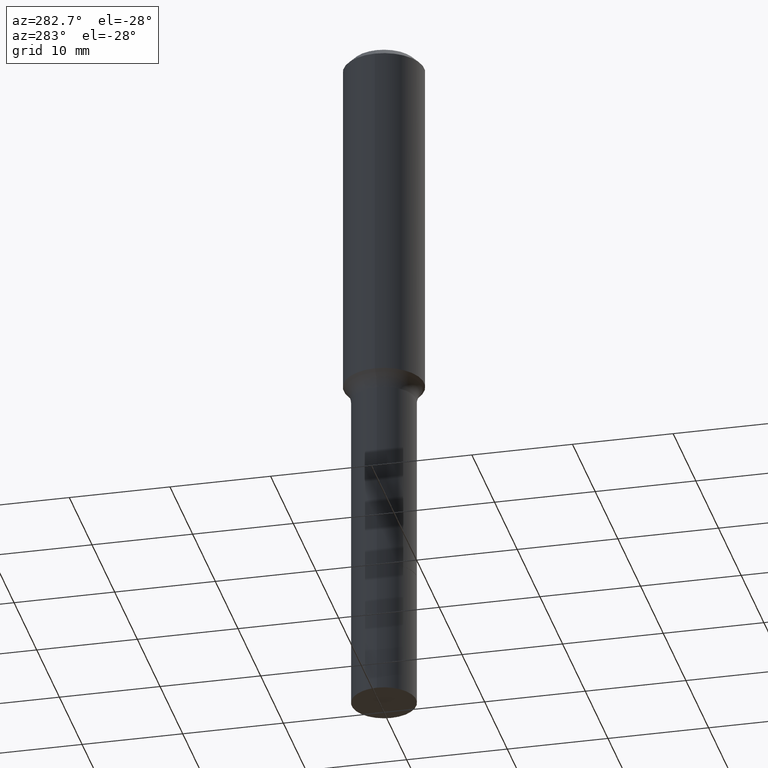
[diagram: clean part render]
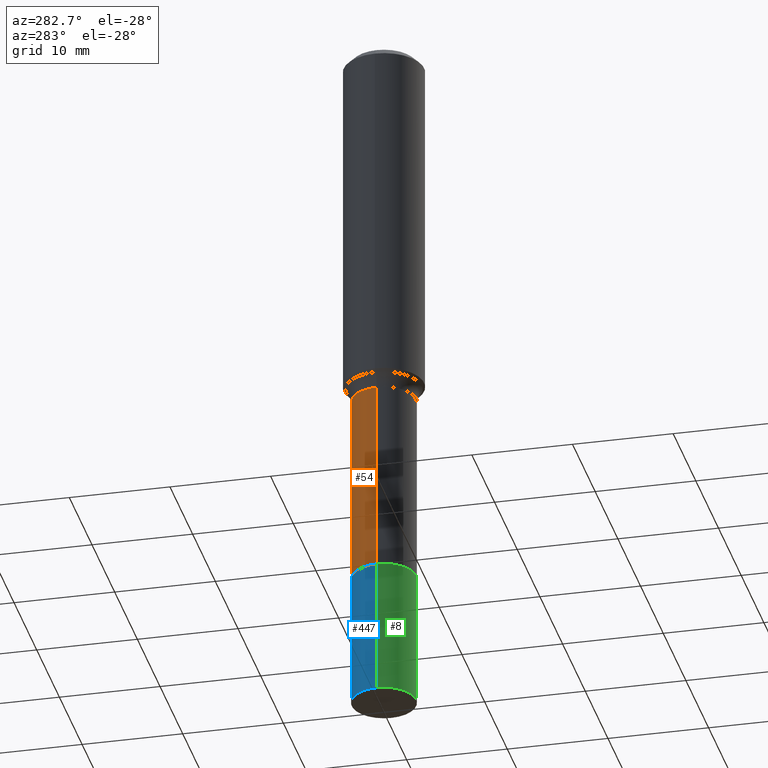
[diagram: same view with three faces highlighted in distinct colors, each labeled with its STEP entity id]
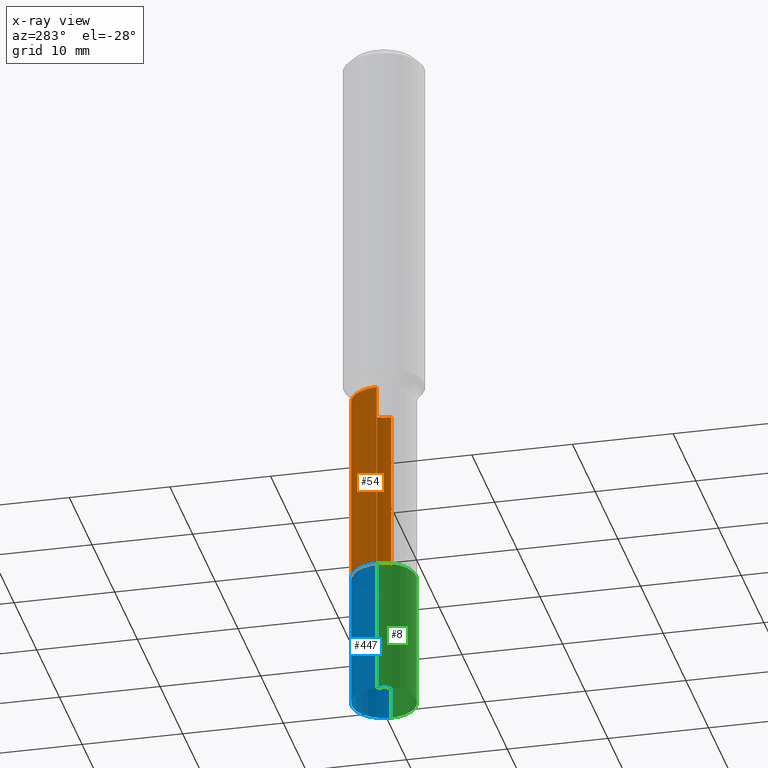
[diagram: x-ray of the same camera — body ghosted, the three highlighted faces saturated]
A machine part, auxiliary view with three faces highlighted in distinct colors.
The next image is the same camera in x-ray (body ghosted, the three faces saturated) — at least one of them is partly hidden behind the body in this view.
Their STEP definitions:

[orange] entity #54 — the highlighted cylindrical surface (edge-blend (fillet) strip) has radius 3.2004 mm, axis along (-0, 0, 1).
#1 = AXIS2_PLACEMENT_3D ( 'NONE', #72, #98, #418 ) ;
#9 = FACE_OUTER_BOUND ( 'NONE', #388, .T. ) ;
#17 = CARTESIAN_POINT ( 'NONE',  ( 0.1259999999999999454, -8.798532973884691559E-16, 6.143982737502876745E-30 ) ) ;
#54 = ADVANCED_FACE ( 'NONE', ( #9 ), #295, .T. ) ;
#61 = CARTESIAN_POINT ( 'NONE',  ( -0.1260000000000000009, -5.524328316606223241E-15, -2.220399999999999707 ) ) ;
#62 = EDGE_CURVE ( 'NONE', #380, #238, #107, .T. ) ;
#72 = CARTESIAN_POINT ( 'NONE',  ( 5.429918937253476724E-29, -7.752485164767320704E-15, -2.220399999999999707 ) ) ;
#97 = CARTESIAN_POINT ( 'NONE',  ( 0.1259999999999998899, -5.966592459949047611E-15, -1.456899999999999862 ) ) ;
#98 = DIRECTION ( 'NONE',  ( -2.445468806185136597E-29, 3.491481338843145583E-15, 1.000000000000000000 ) ) ;
#107 = LINE ( 'NONE', #17, #345 ) ;
#121 = EDGE_CURVE ( 'NONE', #401, #322, #186, .T. ) ;
#141 = CARTESIAN_POINT ( 'NONE',  ( -0.1259999999999999454, 8.952838470577258461E-16, -6.197858213721179206E-30 ) ) ;
#152 = DIRECTION ( 'NONE',  ( -2.445468806185136597E-29, 3.491481338843145583E-15, 1.000000000000000000 ) ) ;
#183 = DIRECTION ( 'NONE',  ( -2.445468806185136877E-29, 3.491481338843145188E-15, 1.000000000000000000 ) ) ;
#186 = LINE ( 'NONE', #141, #208 ) ;
#208 = VECTOR ( 'NONE', #406, 39.37007874015748143 ) ;
#233 = CIRCLE ( 'NONE', #1, 0.1260000000000000009 ) ;
#238 = VERTEX_POINT ( 'NONE', #97 ) ;
#246 = CARTESIAN_POINT ( 'NONE',  ( -0.1259999999999998899, -5.524328316606224029E-15, -1.456899999999999862 ) ) ;
#295 = CYLINDRICAL_SURFACE ( 'NONE', #376, 0.1259999999999999454 ) ;
#297 = CARTESIAN_POINT ( 'NONE',  ( 3.562803503731125923E-29, -5.086739162560578258E-15, -1.456899999999999862 ) ) ;
#322 = VERTEX_POINT ( 'NONE', #246 ) ;
#345 = VECTOR ( 'NONE', #183, 39.37007874015748143 ) ;
#349 = ORIENTED_EDGE ( 'NONE', *, *, #62, .F. ) ;
#352 = ORIENTED_EDGE ( 'NONE', *, *, #121, .T. ) ;
#368 = DIRECTION ( 'NONE',  ( -2.445468806185136597E-29, 3.491481338843145583E-15, 1.000000000000000000 ) ) ;
#376 = AXIS2_PLACEMENT_3D ( 'NONE', #454, #368, #484 ) ;
#380 = VERTEX_POINT ( 'NONE', #449 ) ;
#388 = EDGE_LOOP ( 'NONE', ( #511, #352, #395, #349 ) ) ;
#395 = ORIENTED_EDGE ( 'NONE', *, *, #457, .F. ) ;
#401 = VERTEX_POINT ( 'NONE', #61 ) ;
#403 = AXIS2_PLACEMENT_3D ( 'NONE', #297, #152, #417 ) ;
#406 = DIRECTION ( 'NONE',  ( -2.445468806185136877E-29, 3.491481338843145188E-15, 1.000000000000000000 ) ) ;
#417 = DIRECTION ( 'NONE',  ( 1.000000000000000000, -6.982962677686269077E-15, 0.000000000000000000 ) ) ;
#418 = DIRECTION ( 'NONE',  ( 1.000000000000000000, -6.982962677686262766E-15, 0.000000000000000000 ) ) ;
#449 = CARTESIAN_POINT ( 'NONE',  ( 0.1260000000000000009, -8.632338462155790057E-15, -2.220399999999999707 ) ) ;
#454 = CARTESIAN_POINT ( 'NONE',  ( 0.000000000000000000, 0.000000000000000000, 0.000000000000000000 ) ) ;
#457 = EDGE_CURVE ( 'NONE', #238, #322, #478, .T. ) ;
#478 = CIRCLE ( 'NONE', #403, 0.1259999999999998899 ) ;
#484 = DIRECTION ( 'NONE',  ( 1.000000000000000000, -6.982962677686265922E-15, 4.876176775795935793E-29 ) ) ;
#486 = EDGE_CURVE ( 'NONE', #380, #401, #233, .T. ) ;
#511 = ORIENTED_EDGE ( 'NONE', *, *, #486, .T. ) ;

[blue] entity #447 — the highlighted cylindrical surface (edge-blend (fillet) strip) has radius 3.2004 mm, axis along (-0, 0, 1).
#10 = DIRECTION ( 'NONE',  ( 1.000000000000000000, -6.982962677686261977E-15, 0.000000000000000000 ) ) ;
#13 = DIRECTION ( 'NONE',  ( 1.000000000000000000, -6.982962677686265922E-15, 0.000000000000000000 ) ) ;
#32 = CIRCLE ( 'NONE', #461, 0.1260000000000001674 ) ;
#50 = DIRECTION ( 'NONE',  ( 1.000000000000000000, -6.982962677686262766E-15, 0.000000000000000000 ) ) ;
#58 = DIRECTION ( 'NONE',  ( -2.445468806185136877E-29, 3.491481338843145188E-15, 1.000000000000000000 ) ) ;
#74 = EDGE_LOOP ( 'NONE', ( #275, #391, #470, #144 ) ) ;
#79 = CARTESIAN_POINT ( 'NONE',  ( 0.1260000000000000009, -8.634084202825210772E-15, -2.220899999999999874 ) ) ;
#83 = AXIS2_PLACEMENT_3D ( 'NONE', #444, #359, #50 ) ;
#87 = LINE ( 'NONE', #485, #390 ) ;
#140 = CARTESIAN_POINT ( 'NONE',  ( 6.739467482965618232E-29, -9.622173421717824390E-15, -2.755900000000000016 ) ) ;
#144 = ORIENTED_EDGE ( 'NONE', *, *, #202, .F. ) ;
#160 = FACE_OUTER_BOUND ( 'NONE', #74, .T. ) ;
#163 = CARTESIAN_POINT ( 'NONE',  ( -0.1260000000000000009, -7.792918316519555875E-15, -2.220899999999999874 ) ) ;
#171 = VERTEX_POINT ( 'NONE', #163 ) ;
#176 = EDGE_CURVE ( 'NONE', #361, #171, #464, .T. ) ;
#182 = DIRECTION ( 'NONE',  ( -2.445468806185136597E-29, 3.491481338843145583E-15, 1.000000000000000000 ) ) ;
#202 = EDGE_CURVE ( 'NONE', #277, #515, #87, .T. ) ;
#213 = CARTESIAN_POINT ( 'NONE',  ( -0.1260000000000001674, -7.792918316519555875E-15, -2.755900000000000016 ) ) ;
#218 = EDGE_CURVE ( 'NONE', #515, #171, #304, .T. ) ;
#220 = CYLINDRICAL_SURFACE ( 'NONE', #411, 0.1260000000000000842 ) ;
#243 = VECTOR ( 'NONE', #305, 39.37007874015748143 ) ;
#251 = EDGE_CURVE ( 'NONE', #277, #361, #32, .T. ) ;
#271 = CARTESIAN_POINT ( 'NONE',  ( -0.1260000000000000842, -6.858947058379013600E-15, -2.220899999999999874 ) ) ;
#275 = ORIENTED_EDGE ( 'NONE', *, *, #251, .T. ) ;
#277 = VERTEX_POINT ( 'NONE', #516 ) ;
#304 = CIRCLE ( 'NONE', #83, 0.1260000000000000009 ) ;
#305 = DIRECTION ( 'NONE',  ( -2.445468806185136877E-29, 3.491481338843145188E-15, 1.000000000000000000 ) ) ;
#341 = DIRECTION ( 'NONE',  ( -2.445468806185136597E-29, 3.491481338843145583E-15, 1.000000000000000000 ) ) ;
#359 = DIRECTION ( 'NONE',  ( -2.445468806185136597E-29, 3.491481338843145583E-15, 1.000000000000000000 ) ) ;
#361 = VERTEX_POINT ( 'NONE', #213 ) ;
#369 = CARTESIAN_POINT ( 'NONE',  ( 5.431141671656569525E-29, -7.754230905436741419E-15, -2.220899999999999874 ) ) ;
#390 = VECTOR ( 'NONE', #58, 39.37007874015748143 ) ;
#391 = ORIENTED_EDGE ( 'NONE', *, *, #176, .T. ) ;
#411 = AXIS2_PLACEMENT_3D ( 'NONE', #369, #341, #13 ) ;
#444 = CARTESIAN_POINT ( 'NONE',  ( 5.431141671656569525E-29, -7.754230905436741419E-15, -2.220899999999999874 ) ) ;
#447 = ADVANCED_FACE ( 'NONE', ( #160 ), #220, .T. ) ;
#461 = AXIS2_PLACEMENT_3D ( 'NONE', #140, #182, #10 ) ;
#464 = LINE ( 'NONE', #271, #243 ) ;
#470 = ORIENTED_EDGE ( 'NONE', *, *, #218, .F. ) ;
#485 = CARTESIAN_POINT ( 'NONE',  ( 0.1260000000000000842, -8.634084202825210772E-15, -2.220899999999999874 ) ) ;
#515 = VERTEX_POINT ( 'NONE', #79 ) ;
#516 = CARTESIAN_POINT ( 'NONE',  ( 0.1260000000000001674, -1.050202671910629532E-14, -2.755900000000000016 ) ) ;

[green] entity #8 — the highlighted cylindrical surface (edge-blend (fillet) strip) has radius 3.2004 mm, axis along (-0, 0, 1).
#8 = ADVANCED_FACE ( 'NONE', ( #338 ), #366, .T. ) ;
#18 = DIRECTION ( 'NONE',  ( 1.000000000000000000, -6.982962677686261977E-15, 0.000000000000000000 ) ) ;
#21 = AXIS2_PLACEMENT_3D ( 'NONE', #496, #67, #18 ) ;
#55 = CARTESIAN_POINT ( 'NONE',  ( 5.431141671656569525E-29, -7.754230905436741419E-15, -2.220899999999999874 ) ) ;
#58 = DIRECTION ( 'NONE',  ( -2.445468806185136877E-29, 3.491481338843145188E-15, 1.000000000000000000 ) ) ;
#67 = DIRECTION ( 'NONE',  ( -2.445468806185136597E-29, 3.491481338843145583E-15, 1.000000000000000000 ) ) ;
#79 = CARTESIAN_POINT ( 'NONE',  ( 0.1260000000000000009, -8.634084202825210772E-15, -2.220899999999999874 ) ) ;
#87 = LINE ( 'NONE', #485, #390 ) ;
#92 = DIRECTION ( 'NONE',  ( 1.000000000000000000, -6.982962677686262766E-15, 0.000000000000000000 ) ) ;
#96 = DIRECTION ( 'NONE',  ( 1.000000000000000000, -6.982962677686265922E-15, 0.000000000000000000 ) ) ;
#145 = AXIS2_PLACEMENT_3D ( 'NONE', #55, #222, #96 ) ;
#163 = CARTESIAN_POINT ( 'NONE',  ( -0.1260000000000000009, -7.792918316519555875E-15, -2.220899999999999874 ) ) ;
#171 = VERTEX_POINT ( 'NONE', #163 ) ;
#176 = EDGE_CURVE ( 'NONE', #361, #171, #464, .T. ) ;
#198 = ORIENTED_EDGE ( 'NONE', *, *, #234, .F. ) ;
#202 = EDGE_CURVE ( 'NONE', #277, #515, #87, .T. ) ;
#206 = ORIENTED_EDGE ( 'NONE', *, *, #393, .T. ) ;
#213 = CARTESIAN_POINT ( 'NONE',  ( -0.1260000000000001674, -7.792918316519555875E-15, -2.755900000000000016 ) ) ;
#215 = CARTESIAN_POINT ( 'NONE',  ( 5.431141671656569525E-29, -7.754230905436741419E-15, -2.220899999999999874 ) ) ;
#222 = DIRECTION ( 'NONE',  ( -2.445468806185136597E-29, 3.491481338843145583E-15, 1.000000000000000000 ) ) ;
#234 = EDGE_CURVE ( 'NONE', #171, #515, #328, .T. ) ;
#243 = VECTOR ( 'NONE', #305, 39.37007874015748143 ) ;
#244 = CIRCLE ( 'NONE', #21, 0.1260000000000001674 ) ;
#271 = CARTESIAN_POINT ( 'NONE',  ( -0.1260000000000000842, -6.858947058379013600E-15, -2.220899999999999874 ) ) ;
#277 = VERTEX_POINT ( 'NONE', #516 ) ;
#280 = EDGE_LOOP ( 'NONE', ( #500, #206, #509, #198 ) ) ;
#305 = DIRECTION ( 'NONE',  ( -2.445468806185136877E-29, 3.491481338843145188E-15, 1.000000000000000000 ) ) ;
#320 = DIRECTION ( 'NONE',  ( -2.445468806185136597E-29, 3.491481338843145583E-15, 1.000000000000000000 ) ) ;
#328 = CIRCLE ( 'NONE', #468, 0.1260000000000000009 ) ;
#338 = FACE_OUTER_BOUND ( 'NONE', #280, .T. ) ;
#361 = VERTEX_POINT ( 'NONE', #213 ) ;
#366 = CYLINDRICAL_SURFACE ( 'NONE', #145, 0.1260000000000000842 ) ;
#390 = VECTOR ( 'NONE', #58, 39.37007874015748143 ) ;
#393 = EDGE_CURVE ( 'NONE', #361, #277, #244, .T. ) ;
#464 = LINE ( 'NONE', #271, #243 ) ;
#468 = AXIS2_PLACEMENT_3D ( 'NONE', #215, #320, #92 ) ;
#485 = CARTESIAN_POINT ( 'NONE',  ( 0.1260000000000000842, -8.634084202825210772E-15, -2.220899999999999874 ) ) ;
#496 = CARTESIAN_POINT ( 'NONE',  ( 6.739467482965618232E-29, -9.622173421717824390E-15, -2.755900000000000016 ) ) ;
#500 = ORIENTED_EDGE ( 'NONE', *, *, #176, .F. ) ;
#509 = ORIENTED_EDGE ( 'NONE', *, *, #202, .T. ) ;
#515 = VERTEX_POINT ( 'NONE', #79 ) ;
#516 = CARTESIAN_POINT ( 'NONE',  ( 0.1260000000000001674, -1.050202671910629532E-14, -2.755900000000000016 ) ) ;